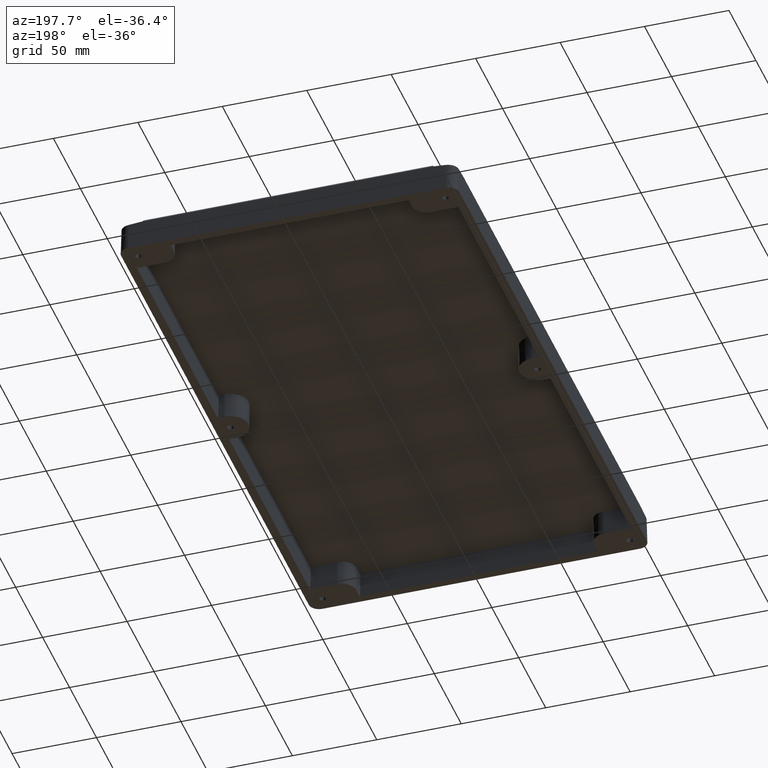
[diagram: clean part render]
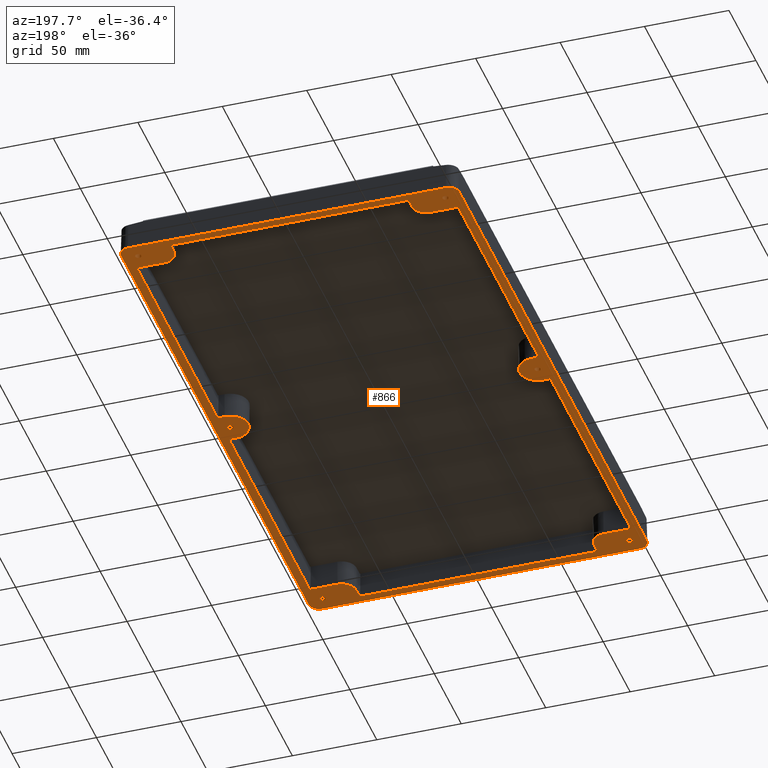
[diagram: same view with one face highlighted and labeled with its STEP entity id]
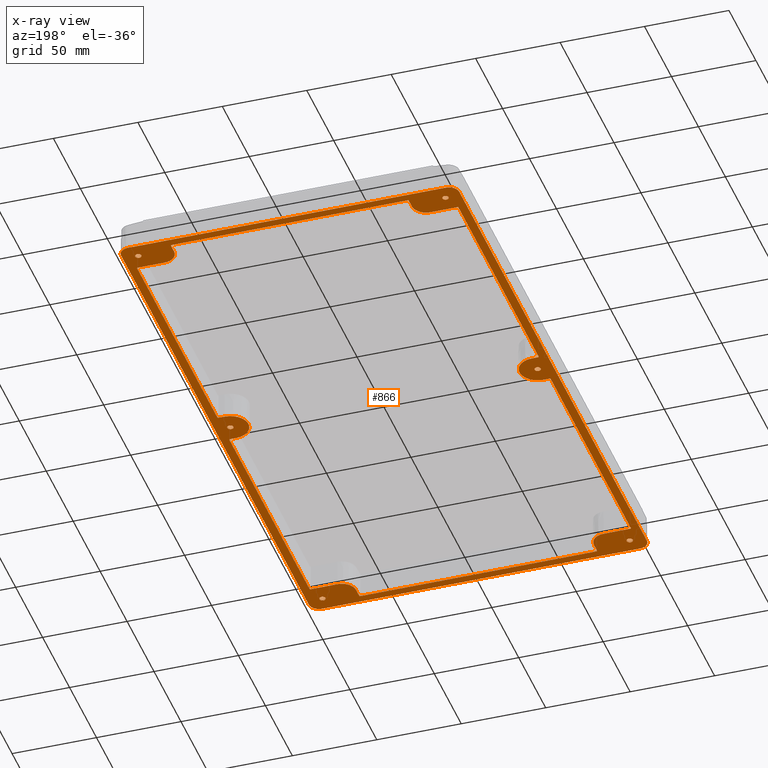
[diagram: x-ray of the same camera — body ghosted, the highlighted face saturated]
A machine part, auxiliary view. The second image highlights one B-rep face of the part: STEP entity #866.
The next image is the same camera in x-ray: the body ghosted, the highlighted face saturated — about 0% of this face is hidden behind the body in this view.
In plain terms, the highlighted planar face has unit normal (0, 0, -1).
Its self-contained STEP definition (entity closure, byte-faithful):
#9 = VERTEX_POINT ( 'NONE', #1637 ) ;
#17 = VERTEX_POINT ( 'NONE', #6438 ) ;
#20 = CARTESIAN_POINT ( 'NONE',  ( 0.0000000000000000000, -160.3950898701435500, -0.0000000000000000000 ) ) ;
#38 = EDGE_CURVE ( 'NONE', #893, #1880, #4820, .T. ) ;
#50 = CARTESIAN_POINT ( 'NONE',  ( -90.94999999999998900, 0.0000000000000000000, 0.0000000000000000000 ) ) ;
#67 = ORIENTED_EDGE ( 'NONE', *, *, #4058, .T. ) ;
#73 = CARTESIAN_POINT ( 'NONE',  ( -70.39508987014356500, 174.6051660225653600, 0.0000000000000000000 ) ) ;
#74 = VERTEX_POINT ( 'NONE', #2225 ) ;
#97 = VECTOR ( 'NONE', #1360, 1000.000000000000000 ) ;
#101 = CARTESIAN_POINT ( 'NONE',  ( -92.73141911687078200, -170.9499999999999900, 0.0000000000000000000 ) ) ;
#110 = CIRCLE ( 'NONE', #5610, 10.70491012985643000 ) ;
#128 = CARTESIAN_POINT ( 'NONE',  ( -95.10508987014355900, -11.20483397743463200, 0.0000000000000000000 ) ) ;
#133 = AXIS2_PLACEMENT_3D ( 'NONE', #782, #4488, #1313 ) ;
#144 = EDGE_CURVE ( 'NONE', #4789, #2051, #2618, .T. ) ;
#167 = CIRCLE ( 'NONE', #5452, 8.404910129856432400 ) ;
#219 = CARTESIAN_POINT ( 'NONE',  ( -100.0611865514846000, 174.8877112743129800, -9.812817213613517900E-016 ) ) ;
#239 = DIRECTION ( 'NONE',  ( 0.0000000000000000000, 0.0000000000000000000, -1.000000000000000000 ) ) ;
#244 = CARTESIAN_POINT ( 'NONE',  ( -98.06864227310671800, 178.6186540754715700, -5.286507671876823600E-015 ) ) ;
#255 = CARTESIAN_POINT ( 'NONE',  ( 95.65226020966247200, 179.8997009411932000, -2.257494188082270300E-016 ) ) ;
#256 = DIRECTION ( 'NONE',  ( 1.000000000000000000, -0.0000000000000000000, -0.0000000000000000000 ) ) ;
#257 = CARTESIAN_POINT ( 'NONE',  ( -95.10508987014355900, -159.8951660225653800, 0.0000000000000000000 ) ) ;
#261 = EDGE_CURVE ( 'NONE', #3702, #17, #6180, .T. ) ;
#276 = CARTESIAN_POINT ( 'NONE',  ( 99.79125463768900800, 176.0419557168522100, 2.521282835941872800E-016 ) ) ;
#277 = DIRECTION ( 'NONE',  ( 1.000000000000000000, 0.0000000000000000000, 0.0000000000000000000 ) ) ;
#279 = VERTEX_POINT ( 'NONE', #2429 ) ;
#292 = EDGE_CURVE ( 'NONE', #1758, #337, #1740, .T. ) ;
#298 = CARTESIAN_POINT ( 'NONE',  ( 94.60516602256534200, -10.70491012985643700, 0.0000000000000000000 ) ) ;
#300 = AXIS2_PLACEMENT_3D ( 'NONE', #1956, #5686, #2490 ) ;
#302 = CARTESIAN_POINT ( 'NONE',  ( -90.94999999999998900, 0.0000000000000000000, 0.0000000000000000000 ) ) ;
#306 = CARTESIAN_POINT ( 'NONE',  ( 0.0000000000000000000, 175.1050898701435300, 0.0000000000000000000 ) ) ;
#318 = VERTEX_POINT ( 'NONE', #882 ) ;
#335 = EDGE_LOOP ( 'NONE', ( #1837, #5002 ) ) ;
#337 = VERTEX_POINT ( 'NONE', #2478 ) ;
#345 = VERTEX_POINT ( 'NONE', #6217 ) ;
#347 = CIRCLE ( 'NONE', #4521, 1.781419116870783400 ) ;
#350 = CIRCLE ( 'NONE', #5202, 1.781419116870783400 ) ;
#372 = AXIS2_PLACEMENT_3D ( 'NONE', #987, #4693, #1517 ) ;
#389 = CARTESIAN_POINT ( 'NONE',  ( -80.24508987014355900, 0.0000000000000000000, 0.0000000000000000000 ) ) ;
#391 = CARTESIAN_POINT ( 'NONE',  ( 90.94999999999998900, 0.0000000000000000000, 0.0000000000000000000 ) ) ;
#404 = DIRECTION ( 'NONE',  ( -0.0000000000000000000, 1.000000000000000000, -0.0000000000000000000 ) ) ;
#416 = EDGE_CURVE ( 'NONE', #3673, #4888, #6406, .T. ) ;
#429 = CARTESIAN_POINT ( 'NONE',  ( -98.06539613243160100, -178.6215026840463100, -3.073858999079318100E-015 ) ) ;
#432 = VERTEX_POINT ( 'NONE', #5196 ) ;
#446 = CIRCLE ( 'NONE', #5939, 1.781419116870783400 ) ;
#449 = CARTESIAN_POINT ( 'NONE',  ( 100.0999999999999800, -174.4982977664216400, -4.977233360702049100E-013 ) ) ;
#461 = CARTESIAN_POINT ( 'NONE',  ( 95.10508987014358700, 160.1880331027236100, 0.0000000000000000000 ) ) ;
#465 = CARTESIAN_POINT ( 'NONE',  ( 99.30929745605615700, -177.1049914245107900, 3.443078577332647700E-015 ) ) ;
#473 = VERTEX_POINT ( 'NONE', #5256 ) ;
#480 = VERTEX_POINT ( 'NONE', #5774 ) ;
#485 = CARTESIAN_POINT ( 'NONE',  ( 94.10227574382449200, -180.0999999999999900, 0.0000000000000000000 ) ) ;
#508 = DIRECTION ( 'NONE',  ( 1.000000000000000000, 0.0000000000000000000, 0.0000000000000000000 ) ) ;
#531 = LINE ( 'NONE', #5078, #1947 ) ;
#536 = CARTESIAN_POINT ( 'NONE',  ( 95.10508987014353000, -10.91196689727638100, 0.0000000000000000000 ) ) ;
#542 = VERTEX_POINT ( 'NONE', #2131 ) ;
#547 = VERTEX_POINT ( 'NONE', #1608 ) ;
#566 = EDGE_CURVE ( 'NONE', #3972, #5915, #4140, .T. ) ;
#568 = CARTESIAN_POINT ( 'NONE',  ( 95.10508987014355900, 11.20483397743463200, 0.0000000000000000000 ) ) ;
#570 = DIRECTION ( 'NONE',  ( 1.000000000000000000, 0.0000000000000000000, 0.0000000000000000000 ) ) ;
#574 = ORIENTED_EDGE ( 'NONE', *, *, #3887, .F. ) ;
#582 = CARTESIAN_POINT ( 'NONE',  ( -92.73141911687078200, 170.9499999999999900, 0.0000000000000000000 ) ) ;
#592 = CARTESIAN_POINT ( 'NONE',  ( 70.18803310272360800, 175.1050898701435600, 0.0000000000000000000 ) ) ;
#606 = CARTESIAN_POINT ( 'NONE',  ( 95.10508987014355900, -11.20483397743463900, 0.0000000000000000000 ) ) ;
#618 = VECTOR ( 'NONE', #2472, 1000.000000000000000 ) ;
#625 = ORIENTED_EDGE ( 'NONE', *, *, #3495, .T. ) ;
#636 = CARTESIAN_POINT ( 'NONE',  ( -95.10508987014355900, 0.0000000000000000000, 0.0000000000000000000 ) ) ;
#653 = EDGE_CURVE ( 'NONE', #5387, #3051, #1093, .T. ) ;
#659 = EDGE_CURVE ( 'NONE', #547, #318, #2236, .T. ) ;
#668 = CARTESIAN_POINT ( 'NONE',  ( 70.39508987014356500, -174.6051660225653800, 0.0000000000000000000 ) ) ;
#680 = ORIENTED_EDGE ( 'NONE', *, *, #776, .T. ) ;
#696 = CIRCLE ( 'NONE', #3816, 1.781419116870783400 ) ;
#710 = EDGE_CURVE ( 'NONE', #5719, #893, #6773, .T. ) ;
#759 = ORIENTED_EDGE ( 'NONE', *, *, #4476, .T. ) ;
#766 = CARTESIAN_POINT ( 'NONE',  ( -94.60516602256534200, -160.3950898701435500, 0.0000000000000000000 ) ) ;
#770 = CARTESIAN_POINT ( 'NONE',  ( -97.27573733343122300, 179.1958090675271900, 1.839765359087504800E-015 ) ) ;
#772 = VERTEX_POINT ( 'NONE', #5490 ) ;
#776 = EDGE_CURVE ( 'NONE', #5031, #801, #347, .T. ) ;
#778 = CARTESIAN_POINT ( 'NONE',  ( 96.21606710556638100, 179.7187829789477000, -2.503219281011954900E-015 ) ) ;
#782 = CARTESIAN_POINT ( 'NONE',  ( 90.94999999999998900, 170.9499999999999900, 0.0000000000000000000 ) ) ;
#801 = VERTEX_POINT ( 'NONE', #2712 ) ;
#802 = CARTESIAN_POINT ( 'NONE',  ( 100.0611818184928400, 174.8900095030461200, -9.994214926206402100E-016 ) ) ;
#804 = VERTEX_POINT ( 'NONE', #101 ) ;
#809 = ORIENTED_EDGE ( 'NONE', *, *, #4814, .T. ) ;
#828 = CARTESIAN_POINT ( 'NONE',  ( -2.724515327580393100E-013, 160.3950898701433800, 0.0000000000000000000 ) ) ;
#832 = DIRECTION ( 'NONE',  ( 1.000000000000000000, 0.0000000000000000000, 0.0000000000000000000 ) ) ;
#836 = CARTESIAN_POINT ( 'NONE',  ( -94.60516602256534200, 10.70491012985643700, 0.0000000000000000000 ) ) ;
#840 = VECTOR ( 'NONE', #4243, 1000.000000000000000 ) ;
#862 = DIRECTION ( 'NONE',  ( -1.000000000000000000, 0.0000000000000000000, -0.0000000000000000000 ) ) ;
#863 = DIRECTION ( 'NONE',  ( 1.000000000000000000, 4.140151493978061200E-016, -0.0000000000000000000 ) ) ;
#866 = ADVANCED_FACE ( 'NONE', ( #4803, #2148, #3552, #5486, #4979, #915, #3380, #1995 ), #3822, .T. ) ;
#878 = CARTESIAN_POINT ( 'NONE',  ( 95.10508987014355900, 11.20483397743463200, 0.0000000000000000000 ) ) ;
#882 = CARTESIAN_POINT ( 'NONE',  ( -78.79999999999999700, -160.3950898701435500, 0.0000000000000000000 ) ) ;
#883 = CARTESIAN_POINT ( 'NONE',  ( -4.431994966702583900E-015, 10.70491012985639600, -0.0000000000000000000 ) ) ;
#893 = VERTEX_POINT ( 'NONE', #668 ) ;
#897 = ORIENTED_EDGE ( 'NONE', *, *, #3218, .T. ) ;
#901 = ORIENTED_EDGE ( 'NONE', *, *, #3971, .T. ) ;
#910 = DIRECTION ( 'NONE',  ( -1.000000000000000000, 0.0000000000000000000, 0.0000000000000000000 ) ) ;
#915 = FACE_BOUND ( 'NONE', #4537, .T. ) ;
#932 =( BOUNDED_CURVE ( )  B_SPLINE_CURVE ( 3, ( #1578, #4783, #3714, #568 ),
 .UNSPECIFIED., .F., .T. ) 
 B_SPLINE_CURVE_WITH_KNOTS ( ( 4, 4 ),
 ( 2.356346783439935900, 3.926838523739660600 ),
 .UNSPECIFIED. ) 
 CURVE ( )  GEOMETRIC_REPRESENTATION_ITEM ( )  RATIONAL_B_SPLINE_CURVE ( ( 1.000000000000000000, 0.8048096403827879100, 0.8048096403827879100, 1.000000000000000000 ) ) 
 REPRESENTATION_ITEM ( '' )  );
#949 = CARTESIAN_POINT ( 'NONE',  ( -90.94999999999998900, 170.9499999999999900, 0.0000000000000000000 ) ) ;
#951 = CARTESIAN_POINT ( 'NONE',  ( -98.86692771561502000, -177.7669763413323900, -7.412452626216713700E-016 ) ) ;
#987 = CARTESIAN_POINT ( 'NONE',  ( 90.94999999999998900, 0.0000000000000000000, 0.0000000000000000000 ) ) ;
#988 = CARTESIAN_POINT ( 'NONE',  ( 98.62150268404619200, -178.0653961324313700, -1.976487102548542200E-015 ) ) ;
#997 = EDGE_CURVE ( 'NONE', #1328, #432, #5062, .T. ) ;
#1018 = CARTESIAN_POINT ( 'NONE',  ( 69.89516602256536300, -175.1050898701435300, -0.0000000000000000000 ) ) ;
#1031 = DIRECTION ( 'NONE',  ( -0.0000000000000000000, -0.0000000000000000000, -1.000000000000000000 ) ) ;
#1048 = CARTESIAN_POINT ( 'NONE',  ( -95.10508987014357300, 159.8951660225653500, 0.0000000000000000000 ) ) ;
#1060 = ORIENTED_EDGE ( 'NONE', *, *, #2968, .T. ) ;
#1065 = CARTESIAN_POINT ( 'NONE',  ( 94.60516602256534200, -10.70491012985643700, 0.0000000000000000000 ) ) ;
#1067 = CARTESIAN_POINT ( 'NONE',  ( 70.39508987014355100, -174.8980331027235600, 0.0000000000000000000 ) ) ;
#1086 = EDGE_CURVE ( 'NONE', #4724, #542, #3498, .T. ) ;
#1091 = DIRECTION ( 'NONE',  ( -1.000000000000000000, 0.0000000000000000000, -0.0000000000000000000 ) ) ;
#1093 =( BOUNDED_CURVE ( )  B_SPLINE_CURVE ( 3, ( #5340, #2023, #4215, #1048 ),
 .UNSPECIFIED., .F., .F. ) 
 B_SPLINE_CURVE_WITH_KNOTS ( ( 4, 4 ),
 ( 2.356346783439935900, 3.926838523739705900 ),
 .UNSPECIFIED. ) 
 CURVE ( )  GEOMETRIC_REPRESENTATION_ITEM ( )  RATIONAL_B_SPLINE_CURVE ( ( 1.000000000000000000, 0.8048096403827772500, 0.8048096403827772500, 1.000000000000000000 ) ) 
 REPRESENTATION_ITEM ( '' )  );
#1119 = CIRCLE ( 'NONE', #133, 1.781419116870783400 ) ;
#1123 = EDGE_CURVE ( 'NONE', #3051, #9, #6201, .T. ) ;
#1134 = CARTESIAN_POINT ( 'NONE',  ( 70.39508987014356500, 0.0000000000000000000, 0.0000000000000000000 ) ) ;
#1142 = EDGE_CURVE ( 'NONE', #5729, #5143, #3154, .T. ) ;
#1205 = CARTESIAN_POINT ( 'NONE',  ( -94.60516602256537100, 160.3950898701435500, 0.0000000000000000000 ) ) ;
#1232 = ORIENTED_EDGE ( 'NONE', *, *, #6360, .T. ) ;
#1233 = VERTEX_POINT ( 'NONE', #6592 ) ;
#1236 = LINE ( 'NONE', #4264, #1398 ) ;
#1244 = CARTESIAN_POINT ( 'NONE',  ( 90.94999999999998900, 10.70491012985643500, -4.336808689942017700E-016 ) ) ;
#1256 = ORIENTED_EDGE ( 'NONE', *, *, #2107, .F. ) ;
#1260 = CIRCLE ( 'NONE', #372, 1.781419116870783400 ) ;
#1261 = ORIENTED_EDGE ( 'NONE', *, *, #1123, .T. ) ;
#1263 = DIRECTION ( 'NONE',  ( 0.0000000000000000000, 0.0000000000000000000, 1.000000000000000000 ) ) ;
#1264 = ORIENTED_EDGE ( 'NONE', *, *, #2079, .T. ) ;
#1266 = VECTOR ( 'NONE', #256, 1000.000000000000000 ) ;
#1281 = VECTOR ( 'NONE', #3548, 1000.000000000000000 ) ;
#1292 = CARTESIAN_POINT ( 'NONE',  ( -96.75949026482086900, 179.4830894971216500, -5.546012845584899200E-015 ) ) ;
#1295 = VERTEX_POINT ( 'NONE', #257 ) ;
#1301 = CARTESIAN_POINT ( 'NONE',  ( 97.10499142451080000, 179.3092974560561900, 1.030578542457225100E-015 ) ) ;
#1303 = DIRECTION ( 'NONE',  ( 0.0000000000000000000, 0.0000000000000000000, -1.000000000000000000 ) ) ;
#1313 = DIRECTION ( 'NONE',  ( 1.000000000000000000, 0.0000000000000000000, 0.0000000000000000000 ) ) ;
#1324 = CARTESIAN_POINT ( 'NONE',  ( -92.73141911687078200, -2.181609219415715600E-016, 0.0000000000000000000 ) ) ;
#1328 = VERTEX_POINT ( 'NONE', #298 ) ;
#1330 = CARTESIAN_POINT ( 'NONE',  ( 100.0999999999999900, 174.1022757438244600, 0.0000000000000000000 ) ) ;
#1355 = AXIS2_PLACEMENT_3D ( 'NONE', #6857, #3654, #508 ) ;
#1360 = DIRECTION ( 'NONE',  ( -1.000000000000000000, -1.698627638655381000E-015, -0.0000000000000000000 ) ) ;
#1361 = CARTESIAN_POINT ( 'NONE',  ( -69.89516602256534800, -175.1050898701435300, 0.0000000000000000000 ) ) ;
#1382 = CARTESIAN_POINT ( 'NONE',  ( 0.0000000000000000000, -10.70491012985643700, -0.0000000000000000000 ) ) ;
#1398 = VECTOR ( 'NONE', #1091, 1000.000000000000000 ) ;
#1400 = DIRECTION ( 'NONE',  ( -0.0000000000000000000, -0.0000000000000000000, -1.000000000000000000 ) ) ;
#1406 = VERTEX_POINT ( 'NONE', #1672 ) ;
#1413 = EDGE_CURVE ( 'NONE', #473, #1295, #3986, .T. ) ;
#1431 = CARTESIAN_POINT ( 'NONE',  ( 70.39508987014356500, 0.0000000000000000000, 0.0000000000000000000 ) ) ;
#1453 = LINE ( 'NONE', #3211, #2853 ) ;
#1455 = CARTESIAN_POINT ( 'NONE',  ( -78.79999999999999700, -168.7999999999999800, 0.0000000000000000000 ) ) ;
#1471 = DIRECTION ( 'NONE',  ( 1.000000000000000000, 0.0000000000000000000, 0.0000000000000000000 ) ) ;
#1472 = CARTESIAN_POINT ( 'NONE',  ( -100.0999999999999900, -180.0999999999999900, 0.0000000000000000000 ) ) ;
#1476 = CARTESIAN_POINT ( 'NONE',  ( -99.29795341314886100, -177.1054965856573100, -8.332946197956115000E-016 ) ) ;
#1493 = ORIENTED_EDGE ( 'NONE', *, *, #2629, .T. ) ;
#1513 = CARTESIAN_POINT ( 'NONE',  ( 95.10508987014355900, 159.8951660225653500, 0.0000000000000000000 ) ) ;
#1517 = DIRECTION ( 'NONE',  ( 1.000000000000000000, 0.0000000000000000000, 0.0000000000000000000 ) ) ;
#1519 = CARTESIAN_POINT ( 'NONE',  ( 97.76697634133238100, -178.8669277156149100, -1.179336768645849400E-016 ) ) ;
#1548 = VERTEX_POINT ( 'NONE', #5047 ) ;
#1578 = CARTESIAN_POINT ( 'NONE',  ( 94.60516602256535600, 10.70491012985643700, -0.0000000000000000000 ) ) ;
#1580 = ORIENTED_EDGE ( 'NONE', *, *, #6587, .T. ) ;
#1588 = VECTOR ( 'NONE', #3284, 1000.000000000000000 ) ;
#1608 = CARTESIAN_POINT ( 'NONE',  ( -94.60516602256534200, -160.3950898701435500, 0.0000000000000000000 ) ) ;
#1611 = EDGE_CURVE ( 'NONE', #1406, #345, #4183, .T. ) ;
#1623 = CARTESIAN_POINT ( 'NONE',  ( 0.0000000000000000000, 10.70491012985643700, 0.0000000000000000000 ) ) ;
#1624 = CARTESIAN_POINT ( 'NONE',  ( -69.89516602256539100, 175.1050898701435300, 0.0000000000000000000 ) ) ;
#1626 = ORIENTED_EDGE ( 'NONE', *, *, #1142, .F. ) ;
#1629 = CARTESIAN_POINT ( 'NONE',  ( -100.0999999999999900, -174.1022757438244900, 0.0000000000000000000 ) ) ;
#1634 =( BOUNDED_CURVE ( )  B_SPLINE_CURVE ( 3, ( #6483, #2746, #3271, #128 ),
 .UNSPECIFIED., .F., .F. ) 
 B_SPLINE_CURVE_WITH_KNOTS ( ( 4, 4 ),
 ( 2.356346783439935900, 3.926838523739660600 ),
 .UNSPECIFIED. ) 
 CURVE ( )  GEOMETRIC_REPRESENTATION_ITEM ( )  RATIONAL_B_SPLINE_CURVE ( ( 1.000000000000000000, 0.8048096403827879100, 0.8048096403827879100, 1.000000000000000000 ) ) 
 REPRESENTATION_ITEM ( '' )  );
#1637 = CARTESIAN_POINT ( 'NONE',  ( -95.10508987014355900, 11.20483397743463900, 0.0000000000000000000 ) ) ;
#1672 = CARTESIAN_POINT ( 'NONE',  ( 94.60516602256535600, -160.3950898701435500, -0.0000000000000000000 ) ) ;
#1683 = CARTESIAN_POINT ( 'NONE',  ( -89.16858088312919500, -170.9499999999999900, 0.0000000000000000000 ) ) ;
#1696 = EDGE_LOOP ( 'NONE', ( #1256, #4480 ) ) ;
#1709 = CARTESIAN_POINT ( 'NONE',  ( 69.89516602256536300, -175.1050898701435300, -0.0000000000000000000 ) ) ;
#1721 = CIRCLE ( 'NONE', #4371, 10.70491012985643000 ) ;
#1740 = LINE ( 'NONE', #2929, #3140 ) ;
#1748 = ORIENTED_EDGE ( 'NONE', *, *, #4562, .T. ) ;
#1758 = VERTEX_POINT ( 'NONE', #4914 ) ;
#1764 = AXIS2_PLACEMENT_3D ( 'NONE', #4198, #1031, #4746 ) ;
#1795 = CARTESIAN_POINT ( 'NONE',  ( -95.10508987014353000, -160.1880331027236400, 0.0000000000000000000 ) ) ;
#1797 = LINE ( 'NONE', #5032, #6379 ) ;
#1798 = CARTESIAN_POINT ( 'NONE',  ( -99.89970094119307500, 175.6522602096624700, -1.030653262841937800E-015 ) ) ;
#1821 = CARTESIAN_POINT ( 'NONE',  ( -96.04195571685217200, 179.7912546376888700, -1.122662163663018800E-015 ) ) ;
#1825 = VECTOR ( 'NONE', #4847, 1000.000000000000000 ) ;
#1832 = CARTESIAN_POINT ( 'NONE',  ( 98.06539613243151600, 178.6215026840462200, -2.429201936161350900E-015 ) ) ;
#1834 = CARTESIAN_POINT ( 'NONE',  ( 0.0000000000000000000, -175.1050898701435300, -0.0000000000000000000 ) ) ;
#1837 = ORIENTED_EDGE ( 'NONE', *, *, #3462, .F. ) ;
#1848 = EDGE_CURVE ( 'NONE', #5623, #1758, #110, .T. ) ;
#1850 = DIRECTION ( 'NONE',  ( 1.000000000000000000, 0.0000000000000000000, 0.0000000000000000000 ) ) ;
#1851 = CIRCLE ( 'NONE', #5398, 8.404910129856432400 ) ;
#1862 = VECTOR ( 'NONE', #404, 1000.000000000000000 ) ;
#1870 = CIRCLE ( 'NONE', #2955, 1.781419116870783400 ) ;
#1877 = ORIENTED_EDGE ( 'NONE', *, *, #4691, .T. ) ;
#1880 = VERTEX_POINT ( 'NONE', #2352 ) ;
#1947 = VECTOR ( 'NONE', #2424, 1000.000000000000000 ) ;
#1955 = EDGE_CURVE ( 'NONE', #772, #2574, #3632, .T. ) ;
#1956 = CARTESIAN_POINT ( 'NONE',  ( 90.94999999999998900, 0.0000000000000000000, 0.0000000000000000000 ) ) ;
#1970 = EDGE_LOOP ( 'NONE', ( #5899, #5219 ) ) ;
#1995 = FACE_BOUND ( 'NONE', #6859, .T. ) ;
#1996 = CARTESIAN_POINT ( 'NONE',  ( -95.46232065231328100, -179.9471065953007700, 2.571658721265192700E-017 ) ) ;
#1998 = EDGE_CURVE ( 'NONE', #2453, #1233, #4911, .T. ) ;
#2000 = DIRECTION ( 'NONE',  ( -1.000000000000000000, 0.0000000000000000000, 0.0000000000000000000 ) ) ;
#2016 = CARTESIAN_POINT ( 'NONE',  ( -99.56672601086465600, -176.5828168333153200, 7.438257726228613800E-017 ) ) ;
#2023 = CARTESIAN_POINT ( 'NONE',  ( -94.89803310272363000, 160.3950898701435500, 0.0000000000000000000 ) ) ;
#2032 = LINE ( 'NONE', #1431, #1862 ) ;
#2051 = VERTEX_POINT ( 'NONE', #6240 ) ;
#2053 = CARTESIAN_POINT ( 'NONE',  ( 97.10549658565727800, -179.2979534131488600, -1.934113723460282700E-015 ) ) ;
#2066 = VECTOR ( 'NONE', #5102, 1000.000000000000000 ) ;
#2079 = EDGE_CURVE ( 'NONE', #3345, #5627, #2994, .T. ) ;
#2107 = EDGE_CURVE ( 'NONE', #1548, #5294, #1260, .T. ) ;
#2118 = EDGE_LOOP ( 'NONE', ( #3798, #5580, #1626, #625, #2772, #3845, #5033, #6129 ) ) ;
#2131 = CARTESIAN_POINT ( 'NONE',  ( -90.94999999999998900, 10.70491012985643700, 0.0000000000000000000 ) ) ;
#2136 = ORIENTED_EDGE ( 'NONE', *, *, #5746, .T. ) ;
#2145 = ORIENTED_EDGE ( 'NONE', *, *, #3130, .F. ) ;
#2148 = FACE_BOUND ( 'NONE', #335, .T. ) ;
#2150 = EDGE_CURVE ( 'NONE', #5795, #4869, #2655, .T. ) ;
#2159 = CARTESIAN_POINT ( 'NONE',  ( -69.89516602256534800, -175.1050898701435300, 0.0000000000000000000 ) ) ;
#2160 = ORIENTED_EDGE ( 'NONE', *, *, #653, .T. ) ;
#2225 = CARTESIAN_POINT ( 'NONE',  ( -70.39508987014356500, 174.6051660225653600, 0.0000000000000000000 ) ) ;
#2236 = LINE ( 'NONE', #20, #840 ) ;
#2243 = ORIENTED_EDGE ( 'NONE', *, *, #1848, .T. ) ;
#2256 =( BOUNDED_CURVE ( )  B_SPLINE_CURVE ( 3, ( #6398, #4804, #5343, #2159 ),
 .UNSPECIFIED., .F., .T. ) 
 B_SPLINE_CURVE_WITH_KNOTS ( ( 4, 4 ),
 ( 2.356346783439935900, 3.926838523739677900 ),
 .UNSPECIFIED. ) 
 CURVE ( )  GEOMETRIC_REPRESENTATION_ITEM ( )  RATIONAL_B_SPLINE_CURVE ( ( 1.000000000000000000, 0.8048096403827838000, 0.8048096403827838000, 1.000000000000000000 ) ) 
 REPRESENTATION_ITEM ( '' )  );
#2294 = EDGE_LOOP ( 'NONE', ( #4076, #680 ) ) ;
#2297 = ORIENTED_EDGE ( 'NONE', *, *, #6349, .T. ) ;
#2337 = CARTESIAN_POINT ( 'NONE',  ( -99.71878297894774300, 176.2160671055662800, -9.392039258388465200E-016 ) ) ;
#2352 = CARTESIAN_POINT ( 'NONE',  ( 70.39508987014356500, -168.7999999999999800, 0.0000000000000000000 ) ) ;
#2356 = CARTESIAN_POINT ( 'NONE',  ( -94.89000950304617300, 180.0611818184927700, 2.006863366285422600E-015 ) ) ;
#2362 = CARTESIAN_POINT ( 'NONE',  ( 98.86692771561502000, 177.7669763413323900, -1.610777949715467800E-015 ) ) ;
#2366 = AXIS2_PLACEMENT_3D ( 'NONE', #4482, #1303, #5021 ) ;
#2424 = DIRECTION ( 'NONE',  ( 0.0000000000000000000, 1.000000000000000000, 0.0000000000000000000 ) ) ;
#2429 = CARTESIAN_POINT ( 'NONE',  ( 70.39508987014356500, 174.6051660225653800, 0.0000000000000000000 ) ) ;
#2436 = DIRECTION ( 'NONE',  ( 0.0000000000000000000, 0.0000000000000000000, -1.000000000000000000 ) ) ;
#2453 = VERTEX_POINT ( 'NONE', #4458 ) ;
#2467 = CARTESIAN_POINT ( 'NONE',  ( 94.60516602256535600, -160.3950898701435500, -0.0000000000000000000 ) ) ;
#2472 = DIRECTION ( 'NONE',  ( -0.0000000000000000000, 1.000000000000000000, -0.0000000000000000000 ) ) ;
#2475 = CARTESIAN_POINT ( 'NONE',  ( -78.79999999999999700, 168.7999999999999800, 0.0000000000000000000 ) ) ;
#2478 = CARTESIAN_POINT ( 'NONE',  ( -94.60516602256535600, -10.70491012985643700, -0.0000000000000000000 ) ) ;
#2485 = EDGE_CURVE ( 'NONE', #804, #6623, #350, .T. ) ;
#2490 = DIRECTION ( 'NONE',  ( 1.000000000000000000, 0.0000000000000000000, 0.0000000000000000000 ) ) ;
#2499 = CARTESIAN_POINT ( 'NONE',  ( -70.39508987014356500, 0.0000000000000000000, 0.0000000000000000000 ) ) ;
#2521 = CARTESIAN_POINT ( 'NONE',  ( -96.02887233921612200, -179.7857018176585800, -1.404448045272068400E-015 ) ) ;
#2534 = DIRECTION ( 'NONE',  ( -0.0000000000000000000, -1.000000000000000000, -0.0000000000000000000 ) ) ;
#2539 = DIRECTION ( 'NONE',  ( 1.000000000000000000, 0.0000000000000000000, 0.0000000000000000000 ) ) ;
#2540 = CARTESIAN_POINT ( 'NONE',  ( -99.90643504357390700, -175.6648654270246400, 3.327712546767379200E-017 ) ) ;
#2542 = ORIENTED_EDGE ( 'NONE', *, *, #997, .T. ) ;
#2552 = CIRCLE ( 'NONE', #300, 1.781419116870783400 ) ;
#2563 = CARTESIAN_POINT ( 'NONE',  ( 99.94710659530069600, -175.4623206523132500, 1.482825712279375200E-015 ) ) ;
#2564 = CARTESIAN_POINT ( 'NONE',  ( 78.79999999999999700, -168.7999999999999800, 0.0000000000000000000 ) ) ;
#2573 = CARTESIAN_POINT ( 'NONE',  ( 94.60516602256534200, 160.3950898701435500, 0.0000000000000000000 ) ) ;
#2574 = VERTEX_POINT ( 'NONE', #6433 ) ;
#2581 = CARTESIAN_POINT ( 'NONE',  ( 96.58281683331533400, -179.5667260108645300, -4.948878109208404500E-015 ) ) ;
#2593 = AXIS2_PLACEMENT_3D ( 'NONE', #5628, #2436, #6179 ) ;
#2618 = B_SPLINE_CURVE_WITH_KNOTS ( 'NONE', 3,
 ( #4447, #3897, #219, #4987, #1798, #5530, #2337, #6069, #2861, #6599, #3387, #244, #3913, #770, #4472, #1292, #5011, #1821, #5548, #2356, #6096, #2884 ),
 .UNSPECIFIED., .F., .F.,
 ( 4, 2, 2, 2, 2, 2, 2, 2, 2, 2, 4 ),
 ( 2.775557561562891400E-017, 0.001171210844434151300, 0.001756816266651208700, 0.002342421688868266200, 0.003513632533302305100, 0.004684843377736344100, 0.005856054222170383100, 0.006441659644387396500, 0.007027265066604410800, 0.008198475911038437600, 0.009369686755472466200 ),
 .UNSPECIFIED. ) ;
#2629 = EDGE_CURVE ( 'NONE', #337, #473, #1634, .T. ) ;
#2648 = EDGE_LOOP ( 'NONE', ( #574, #2145 ) ) ;
#2651 = CARTESIAN_POINT ( 'NONE',  ( 95.10508987014355900, -160.1880331027236100, 0.0000000000000000000 ) ) ;
#2655 = CIRCLE ( 'NONE', #1764, 1.781419116870783400 ) ;
#2671 = LINE ( 'NONE', #2499, #1281 ) ;
#2674 = CARTESIAN_POINT ( 'NONE',  ( 89.16858088312919500, -2.181609219415715100E-016, 0.0000000000000000000 ) ) ;
#2700 = ORIENTED_EDGE ( 'NONE', *, *, #4747, .T. ) ;
#2712 = CARTESIAN_POINT ( 'NONE',  ( 92.73141911687078200, 170.9499999999999900, 0.0000000000000000000 ) ) ;
#2734 = CARTESIAN_POINT ( 'NONE',  ( -95.10508987014355900, -8.813089320652889600E-015, -0.0000000000000000000 ) ) ;
#2746 = CARTESIAN_POINT ( 'NONE',  ( -94.89803310272361600, -10.70491012985644000, 0.0000000000000000000 ) ) ;
#2772 = ORIENTED_EDGE ( 'NONE', *, *, #416, .F. ) ;
#2787 = CARTESIAN_POINT ( 'NONE',  ( 0.0000000000000000000, 0.0000000000000000000, 0.0000000000000000000 ) ) ;
#2790 = VERTEX_POINT ( 'NONE', #1324 ) ;
#2799 = ORIENTED_EDGE ( 'NONE', *, *, #1998, .T. ) ;
#2831 = CIRCLE ( 'NONE', #2366, 10.70491012985643000 ) ;
#2853 = VECTOR ( 'NONE', #5888, 1000.000000000000000 ) ;
#2855 = EDGE_CURVE ( 'NONE', #6623, #804, #6206, .T. ) ;
#2861 = CARTESIAN_POINT ( 'NONE',  ( -99.30929745605617100, 177.1049914245107000, -2.358272998173016700E-017 ) ) ;
#2872 = EDGE_CURVE ( 'NONE', #4288, #4789, #531, .T. ) ;
#2874 = CARTESIAN_POINT ( 'NONE',  ( 94.49829776642171500, 180.0999999999999900, 1.910906329005701600E-015 ) ) ;
#2884 = CARTESIAN_POINT ( 'NONE',  ( -94.10227574382452100, 180.0999999999999900, 0.0000000000000000000 ) ) ;
#2892 = CARTESIAN_POINT ( 'NONE',  ( 99.29795341314880400, 177.1054965856572800, -1.110682589839984600E-015 ) ) ;
#2921 = CIRCLE ( 'NONE', #1355, 1.781419116870783400 ) ;
#2924 = DIRECTION ( 'NONE',  ( 0.0000000000000000000, 0.0000000000000000000, 1.000000000000000000 ) ) ;
#2929 = CARTESIAN_POINT ( 'NONE',  ( 0.0000000000000000000, -10.70491012985643700, -0.0000000000000000000 ) ) ;
#2935 = ORIENTED_EDGE ( 'NONE', *, *, #6195, .T. ) ;
#2955 = AXIS2_PLACEMENT_3D ( 'NONE', #302, #3988, #832 ) ;
#2968 = EDGE_CURVE ( 'NONE', #74, #2453, #2671, .T. ) ;
#2994 = LINE ( 'NONE', #3040, #4230 ) ;
#3000 = VERTEX_POINT ( 'NONE', #6796 ) ;
#3008 = DIRECTION ( 'NONE',  ( -1.000000000000000000, 0.0000000000000000000, 0.0000000000000000000 ) ) ;
#3040 = CARTESIAN_POINT ( 'NONE',  ( -70.39508987014356500, 0.0000000000000000000, 0.0000000000000000000 ) ) ;
#3049 = CARTESIAN_POINT ( 'NONE',  ( -96.76061724776083400, -179.4932926320602200, -3.770084218230412200E-015 ) ) ;
#3051 = VERTEX_POINT ( 'NONE', #4714 ) ;
#3065 = CARTESIAN_POINT ( 'NONE',  ( -100.0999999999999900, -174.4982986667857600, -1.384898868760783800E-015 ) ) ;
#3079 = EDGE_CURVE ( 'NONE', #1880, #5212, #1851, .T. ) ;
#3083 = CARTESIAN_POINT ( 'NONE',  ( 99.78570181765849200, -176.0288723392160900, -5.466943394205041000E-015 ) ) ;
#3085 = DIRECTION ( 'NONE',  ( -1.000000000000000000, 0.0000000000000000000, 0.0000000000000000000 ) ) ;
#3102 = CARTESIAN_POINT ( 'NONE',  ( 95.66486542702456600, -179.9064350435738800, 4.929903486744628300E-015 ) ) ;
#3130 = EDGE_CURVE ( 'NONE', #6860, #480, #2921, .T. ) ;
#3140 = VECTOR ( 'NONE', #862, 1000.000000000000000 ) ;
#3150 = ORIENTED_EDGE ( 'NONE', *, *, #3787, .T. ) ;
#3154 = LINE ( 'NONE', #4344, #1588 ) ;
#3201 = EDGE_CURVE ( 'NONE', #2790, #3277, #696, .T. ) ;
#3211 = CARTESIAN_POINT ( 'NONE',  ( 0.0000000000000000000, -160.3950898701435500, -0.0000000000000000000 ) ) ;
#3216 = CARTESIAN_POINT ( 'NONE',  ( -70.39508987014360700, 174.8980331027236400, 0.0000000000000000000 ) ) ;
#3218 = EDGE_CURVE ( 'NONE', #279, #772, #6100, .T. ) ;
#3219 = ORIENTED_EDGE ( 'NONE', *, *, #1413, .T. ) ;
#3271 = CARTESIAN_POINT ( 'NONE',  ( -95.10508987014353000, -10.91196689727638300, 0.0000000000000000000 ) ) ;
#3277 = VERTEX_POINT ( 'NONE', #5960 ) ;
#3284 = DIRECTION ( 'NONE',  ( 0.0000000000000000000, 1.000000000000000000, 0.0000000000000000000 ) ) ;
#3287 = VECTOR ( 'NONE', #5691, 1000.000000000000000 ) ;
#3309 = VECTOR ( 'NONE', #863, 1000.000000000000000 ) ;
#3317 = DIRECTION ( 'NONE',  ( -1.000000000000000000, 0.0000000000000000000, -0.0000000000000000000 ) ) ;
#3345 = VERTEX_POINT ( 'NONE', #6541 ) ;
#3360 = ORIENTED_EDGE ( 'NONE', *, *, #3592, .T. ) ;
#3380 = FACE_BOUND ( 'NONE', #1696, .T. ) ;
#3382 = CARTESIAN_POINT ( 'NONE',  ( -90.94999999999998900, 0.0000000000000000000, 0.0000000000000000000 ) ) ;
#3387 = CARTESIAN_POINT ( 'NONE',  ( -98.62150268404614900, 178.0653961324314000, -5.286507671876820400E-015 ) ) ;
#3400 = CARTESIAN_POINT ( 'NONE',  ( 95.46232065231328100, 179.9471065953007400, 2.620344817954913700E-016 ) ) ;
#3419 = CARTESIAN_POINT ( 'NONE',  ( 99.56672601086458500, 176.5828168333153200, 2.521282835941874300E-016 ) ) ;
#3420 = DIRECTION ( 'NONE',  ( 0.0000000000000000000, 0.0000000000000000000, 1.000000000000000000 ) ) ;
#3451 = CARTESIAN_POINT ( 'NONE',  ( -95.10508987014353000, 10.91196689727638100, 0.0000000000000000000 ) ) ;
#3456 = LINE ( 'NONE', #6737, #3287 ) ;
#3462 = EDGE_CURVE ( 'NONE', #4869, #5795, #4833, .T. ) ;
#3495 = EDGE_CURVE ( 'NONE', #5729, #4888, #6047, .T. ) ;
#3498 = LINE ( 'NONE', #1623, #5094 ) ;
#3511 =( BOUNDED_CURVE ( )  B_SPLINE_CURVE ( 3, ( #1624, #5897, #3216, #73 ),
 .UNSPECIFIED., .F., .F. ) 
 B_SPLINE_CURVE_WITH_KNOTS ( ( 4, 4 ),
 ( 2.356346783439935900, 3.926838523739705900 ),
 .UNSPECIFIED. ) 
 CURVE ( )  GEOMETRIC_REPRESENTATION_ITEM ( )  RATIONAL_B_SPLINE_CURVE ( ( 1.000000000000000000, 0.8048096403827772500, 0.8048096403827772500, 1.000000000000000000 ) ) 
 REPRESENTATION_ITEM ( '' )  );
#3548 = DIRECTION ( 'NONE',  ( -0.0000000000000000000, -1.000000000000000000, -0.0000000000000000000 ) ) ;
#3552 = FACE_OUTER_BOUND ( 'NONE', #2118, .T. ) ;
#3574 = CARTESIAN_POINT ( 'NONE',  ( -97.75675560653581900, -178.8745738067465800, -1.876175728493452700E-016 ) ) ;
#3592 = EDGE_CURVE ( 'NONE', #17, #5999, #932, .T. ) ;
#3599 = CARTESIAN_POINT ( 'NONE',  ( -94.60516602256534200, 10.70491012985643700, 0.0000000000000000000 ) ) ;
#3608 = CARTESIAN_POINT ( 'NONE',  ( 99.49329263206026000, -176.7606172477607600, -2.863426603167214900E-015 ) ) ;
#3626 = CARTESIAN_POINT ( 'NONE',  ( 94.49829866678571500, -180.0999999999998800, -4.336808689942028000E-015 ) ) ;
#3632 = LINE ( 'NONE', #306, #6501 ) ;
#3654 = DIRECTION ( 'NONE',  ( -0.0000000000000000000, -0.0000000000000000000, -1.000000000000000000 ) ) ;
#3673 = VERTEX_POINT ( 'NONE', #6497 ) ;
#3685 = CARTESIAN_POINT ( 'NONE',  ( 95.10508987014355900, -11.20483397743463900, 0.0000000000000000000 ) ) ;
#3702 = VERTEX_POINT ( 'NONE', #1244 ) ;
#3706 = B_SPLINE_CURVE_WITH_KNOTS ( 'NONE', 3,
 ( #6769, #4636, #5184, #1996, #5722, #2521, #6266, #3049, #6783, #3574, #429, #4114, #951, #4662, #1476, #5199, #2016, #5743, #2540, #6286, #3065, #6803 ),
 .UNSPECIFIED., .F., .F.,
 ( 4, 2, 2, 2, 2, 2, 2, 2, 2, 2, 4 ),
 ( 0.0000000000000000000, 0.001171210844434039000, 0.001756816266651050200, 0.002342421688868061500, 0.003513632533302154200, 0.004684843377736247000, 0.005856054222170339700, 0.006441659644387363500, 0.007027265066604387400, 0.008198475911038434100, 0.009369686755472481800 ),
 .UNSPECIFIED. ) ;
#3714 = CARTESIAN_POINT ( 'NONE',  ( 95.10508987014353000, 10.91196689727638300, 0.0000000000000000000 ) ) ;
#3717 = DIRECTION ( 'NONE',  ( -0.0000000000000000000, -0.0000000000000000000, -1.000000000000000000 ) ) ;
#3718 = DIRECTION ( 'NONE',  ( 1.000000000000000000, -0.0000000000000000000, -0.0000000000000000000 ) ) ;
#3771 = EDGE_CURVE ( 'NONE', #542, #5623, #2831, .T. ) ;
#3787 = EDGE_CURVE ( 'NONE', #5951, #5719, #5333, .T. ) ;
#3798 = ORIENTED_EDGE ( 'NONE', *, *, #5498, .T. ) ;
#3816 = AXIS2_PLACEMENT_3D ( 'NONE', #50, #3717, #570 ) ;
#3822 = PLANE ( 'NONE',  #4014 ) ;
#3845 = ORIENTED_EDGE ( 'NONE', *, *, #5657, .T. ) ;
#3887 = EDGE_CURVE ( 'NONE', #480, #6860, #446, .T. ) ;
#3897 = CARTESIAN_POINT ( 'NONE',  ( -100.0999999999999800, 174.4982977664216400, -8.809142651444740800E-017 ) ) ;
#3907 = DIRECTION ( 'NONE',  ( -1.000000000000000000, 0.0000000000000000000, 0.0000000000000000000 ) ) ;
#3910 = CARTESIAN_POINT ( 'NONE',  ( -94.89803310272360200, -160.3950898701435200, 0.0000000000000000000 ) ) ;
#3913 = CARTESIAN_POINT ( 'NONE',  ( -97.76697634133242300, 178.8669277156150200, 1.839765359087509200E-015 ) ) ;
#3923 = CARTESIAN_POINT ( 'NONE',  ( 96.02887233921617800, 179.7857018176585800, -2.257494188082283600E-016 ) ) ;
#3947 = CARTESIAN_POINT ( 'NONE',  ( 99.90643504357390700, 175.6648654270245200, -9.994214926206419800E-016 ) ) ;
#3971 = EDGE_CURVE ( 'NONE', #5915, #3000, #4060, .T. ) ;
#3972 = VERTEX_POINT ( 'NONE', #6149 ) ;
#3986 = LINE ( 'NONE', #636, #5257 ) ;
#3988 = DIRECTION ( 'NONE',  ( -0.0000000000000000000, -0.0000000000000000000, -1.000000000000000000 ) ) ;
#3992 = CARTESIAN_POINT ( 'NONE',  ( -94.89803310272358800, 10.70491012985643800, 0.0000000000000000000 ) ) ;
#3993 = DIRECTION ( 'NONE',  ( -1.000000000000000000, 0.0000000000000000000, -0.0000000000000000000 ) ) ;
#4014 = AXIS2_PLACEMENT_3D ( 'NONE', #2787, #6523, #3317 ) ;
#4017 = ORIENTED_EDGE ( 'NONE', *, *, #3079, .T. ) ;
#4024 = AXIS2_PLACEMENT_3D ( 'NONE', #2475, #6216, #3008 ) ;
#4058 = EDGE_CURVE ( 'NONE', #432, #3702, #1721, .T. ) ;
#4060 = CIRCLE ( 'NONE', #2593, 8.404910129856446600 ) ;
#4076 = ORIENTED_EDGE ( 'NONE', *, *, #5906, .T. ) ;
#4078 = DIRECTION ( 'NONE',  ( 0.0000000000000000000, 0.0000000000000000000, -1.000000000000000000 ) ) ;
#4083 = EDGE_CURVE ( 'NONE', #318, #3345, #167, .T. ) ;
#4114 = CARTESIAN_POINT ( 'NONE',  ( -98.61865407547166700, -178.0686422731067500, -3.073858999079316500E-015 ) ) ;
#4133 = CARTESIAN_POINT ( 'NONE',  ( 100.0999999999999900, -174.1022757438244400, 0.0000000000000000000 ) ) ;
#4140 = LINE ( 'NONE', #828, #97 ) ;
#4158 = CARTESIAN_POINT ( 'NONE',  ( 98.87457380674656800, -177.7567556065357600, 3.443078577332643300E-015 ) ) ;
#4183 =( BOUNDED_CURVE ( )  B_SPLINE_CURVE ( 3, ( #2467, #6188, #2651, #6380 ),
 .UNSPECIFIED., .F., .T. ) 
 B_SPLINE_CURVE_WITH_KNOTS ( ( 4, 4 ),
 ( 2.356346783439936300, 3.926838523739705400 ),
 .UNSPECIFIED. ) 
 CURVE ( )  GEOMETRIC_REPRESENTATION_ITEM ( )  RATIONAL_B_SPLINE_CURVE ( ( 1.000000000000000000, 0.8048096403827775800, 0.8048096403827775800, 1.000000000000000000 ) ) 
 REPRESENTATION_ITEM ( '' )  );
#4198 = CARTESIAN_POINT ( 'NONE',  ( -90.94999999999998900, 170.9499999999999900, 0.0000000000000000000 ) ) ;
#4215 = CARTESIAN_POINT ( 'NONE',  ( -95.10508987014360100, 160.1880331027235800, 0.0000000000000000000 ) ) ;
#4230 = VECTOR ( 'NONE', #2534, 1000.000000000000000 ) ;
#4239 = CARTESIAN_POINT ( 'NONE',  ( 94.89803310272358800, -10.70491012985643800, 0.0000000000000000000 ) ) ;
#4243 = DIRECTION ( 'NONE',  ( 1.000000000000000000, -0.0000000000000000000, -0.0000000000000000000 ) ) ;
#4264 = CARTESIAN_POINT ( 'NONE',  ( 0.0000000000000000000, 160.3950898701435500, 0.0000000000000000000 ) ) ;
#4265 = CARTESIAN_POINT ( 'NONE',  ( 70.18803310272359400, -175.1050898701435900, 0.0000000000000000000 ) ) ;
#4269 = CARTESIAN_POINT ( 'NONE',  ( 70.39508987014356500, 174.6051660225653800, 0.0000000000000000000 ) ) ;
#4288 = VERTEX_POINT ( 'NONE', #1629 ) ;
#4298 = CARTESIAN_POINT ( 'NONE',  ( 69.89516602256534800, 175.1050898701435300, 0.0000000000000000000 ) ) ;
#4344 = CARTESIAN_POINT ( 'NONE',  ( 100.0999999999999900, -180.0999999999999900, 0.0000000000000000000 ) ) ;
#4371 = AXIS2_PLACEMENT_3D ( 'NONE', #391, #4078, #910 ) ;
#4434 = CARTESIAN_POINT ( 'NONE',  ( 90.94999999999998900, 170.9499999999999900, 0.0000000000000000000 ) ) ;
#4447 = CARTESIAN_POINT ( 'NONE',  ( -100.0999999999999900, 174.1022757438244600, 0.0000000000000000000 ) ) ;
#4453 = ORIENTED_EDGE ( 'NONE', *, *, #261, .T. ) ;
#4458 = CARTESIAN_POINT ( 'NONE',  ( -70.39508987014356500, 168.7999999999999800, 0.0000000000000000000 ) ) ;
#4472 = CARTESIAN_POINT ( 'NONE',  ( -97.10549658565726400, 179.2979534131487800, -5.546012845584896800E-015 ) ) ;
#4476 = EDGE_CURVE ( 'NONE', #1295, #547, #5879, .T. ) ;
#4480 = ORIENTED_EDGE ( 'NONE', *, *, #5109, .F. ) ;
#4481 = CARTESIAN_POINT ( 'NONE',  ( 96.76061724776082000, 179.4932926320602200, -2.503219281011954100E-015 ) ) ;
#4482 = CARTESIAN_POINT ( 'NONE',  ( -90.94999999999998900, 0.0000000000000000000, 0.0000000000000000000 ) ) ;
#4488 = DIRECTION ( 'NONE',  ( 0.0000000000000000000, 0.0000000000000000000, 1.000000000000000000 ) ) ;
#4506 = CARTESIAN_POINT ( 'NONE',  ( 100.0999999999999400, 174.4982986667856200, -1.818109899167053100E-015 ) ) ;
#4521 = AXIS2_PLACEMENT_3D ( 'NONE', #4434, #1263, #4969 ) ;
#4537 = EDGE_LOOP ( 'NONE', ( #6493, #6649 ) ) ;
#4562 = EDGE_CURVE ( 'NONE', #9, #4724, #5680, .T. ) ;
#4587 = CARTESIAN_POINT ( 'NONE',  ( 90.94999999999998900, -170.9499999999999900, 0.0000000000000000000 ) ) ;
#4600 = VECTOR ( 'NONE', #5397, 1000.000000000000000 ) ;
#4616 = EDGE_CURVE ( 'NONE', #5668, #5143, #5448, .T. ) ;
#4636 = CARTESIAN_POINT ( 'NONE',  ( -94.49829776642172900, -180.1000000000000200, 1.165517335421917300E-015 ) ) ;
#4657 = DIRECTION ( 'NONE',  ( -0.0000000000000000000, -0.0000000000000000000, -1.000000000000000000 ) ) ;
#4662 = CARTESIAN_POINT ( 'NONE',  ( -99.19580906752723600, -177.2757373334313200, -7.412452626216700900E-016 ) ) ;
#4676 = CARTESIAN_POINT ( 'NONE',  ( 94.10227574382452100, 180.0999999999999900, 0.0000000000000000000 ) ) ;
#4691 = EDGE_CURVE ( 'NONE', #345, #4894, #3456, .T. ) ;
#4693 = DIRECTION ( 'NONE',  ( -0.0000000000000000000, -0.0000000000000000000, -1.000000000000000000 ) ) ;
#4696 = CARTESIAN_POINT ( 'NONE',  ( 98.06864227310670400, -178.6186540754715100, -1.976487102548541400E-015 ) ) ;
#4711 = ORIENTED_EDGE ( 'NONE', *, *, #4826, .T. ) ;
#4714 = CARTESIAN_POINT ( 'NONE',  ( -95.10508987014357300, 159.8951660225653500, 0.0000000000000000000 ) ) ;
#4724 = VERTEX_POINT ( 'NONE', #3599 ) ;
#4730 = ORIENTED_EDGE ( 'NONE', *, *, #3771, .T. ) ;
#4746 = DIRECTION ( 'NONE',  ( 1.000000000000000000, 0.0000000000000000000, 0.0000000000000000000 ) ) ;
#4747 = EDGE_CURVE ( 'NONE', #6655, #3972, #5160, .T. ) ;
#4783 = CARTESIAN_POINT ( 'NONE',  ( 94.89803310272361600, 10.70491012985644000, 0.0000000000000000000 ) ) ;
#4789 = VERTEX_POINT ( 'NONE', #5840 ) ;
#4803 = FACE_BOUND ( 'NONE', #2294, .T. ) ;
#4804 = CARTESIAN_POINT ( 'NONE',  ( -70.39508987014355100, -174.8980331027236200, 0.0000000000000000000 ) ) ;
#4810 = AXIS2_PLACEMENT_3D ( 'NONE', #6136, #2924, #6657 ) ;
#4814 = EDGE_CURVE ( 'NONE', #4894, #1328, #4938, .T. ) ;
#4820 = LINE ( 'NONE', #1134, #1825 ) ;
#4826 = EDGE_CURVE ( 'NONE', #1233, #5387, #1236, .T. ) ;
#4833 = CIRCLE ( 'NONE', #5854, 1.781419116870783400 ) ;
#4847 = DIRECTION ( 'NONE',  ( -0.0000000000000000000, 1.000000000000000000, -0.0000000000000000000 ) ) ;
#4869 = VERTEX_POINT ( 'NONE', #582 ) ;
#4888 = VERTEX_POINT ( 'NONE', #5361 ) ;
#4889 = DIRECTION ( 'NONE',  ( -0.0000000000000000000, -1.000000000000000000, -0.0000000000000000000 ) ) ;
#4894 = VERTEX_POINT ( 'NONE', #606 ) ;
#4911 = CIRCLE ( 'NONE', #4024, 8.404910129856432400 ) ;
#4914 = CARTESIAN_POINT ( 'NONE',  ( -90.94999999999998900, -10.70491012985643700, -4.336808689942017700E-016 ) ) ;
#4938 =( BOUNDED_CURVE ( )  B_SPLINE_CURVE ( 3, ( #3685, #536, #4239, #1065 ),
 .UNSPECIFIED., .F., .F. ) 
 B_SPLINE_CURVE_WITH_KNOTS ( ( 4, 4 ),
 ( 2.356346783439925700, 3.926838523739677900 ),
 .UNSPECIFIED. ) 
 CURVE ( )  GEOMETRIC_REPRESENTATION_ITEM ( )  RATIONAL_B_SPLINE_CURVE ( ( 1.000000000000000000, 0.8048096403827813500, 0.8048096403827813500, 1.000000000000000000 ) ) 
 REPRESENTATION_ITEM ( '' )  );
#4969 = DIRECTION ( 'NONE',  ( 1.000000000000000000, 0.0000000000000000000, 0.0000000000000000000 ) ) ;
#4979 = FACE_BOUND ( 'NONE', #1970, .T. ) ;
#4987 = CARTESIAN_POINT ( 'NONE',  ( -99.94710659530066700, 175.4623206523132200, -9.812817213613515900E-016 ) ) ;
#5002 = ORIENTED_EDGE ( 'NONE', *, *, #2150, .F. ) ;
#5006 = CARTESIAN_POINT ( 'NONE',  ( 78.79999999999999700, 160.3950898701435200, 0.0000000000000000000 ) ) ;
#5011 = CARTESIAN_POINT ( 'NONE',  ( -96.58281683331527700, 179.5667260108645000, -1.122662163663017800E-015 ) ) ;
#5019 = CARTESIAN_POINT ( 'NONE',  ( 97.75675560653580500, 178.8745738067465300, 1.030578542457224000E-015 ) ) ;
#5021 = DIRECTION ( 'NONE',  ( -1.000000000000000000, 0.0000000000000000000, 0.0000000000000000000 ) ) ;
#5031 = VERTEX_POINT ( 'NONE', #6150 ) ;
#5032 = CARTESIAN_POINT ( 'NONE',  ( -100.0999999999999900, 180.0999999999999900, 0.0000000000000000000 ) ) ;
#5033 = ORIENTED_EDGE ( 'NONE', *, *, #2872, .T. ) ;
#5047 = CARTESIAN_POINT ( 'NONE',  ( 92.73141911687078200, 0.0000000000000000000, 0.0000000000000000000 ) ) ;
#5054 = CARTESIAN_POINT ( 'NONE',  ( -95.10508987014355900, 11.20483397743463900, 0.0000000000000000000 ) ) ;
#5062 = LINE ( 'NONE', #1382, #2066 ) ;
#5078 = CARTESIAN_POINT ( 'NONE',  ( -100.0999999999999900, -180.0999999999999900, 0.0000000000000000000 ) ) ;
#5094 = VECTOR ( 'NONE', #3718, 1000.000000000000000 ) ;
#5102 = DIRECTION ( 'NONE',  ( -1.000000000000000000, 0.0000000000000000000, -0.0000000000000000000 ) ) ;
#5109 = EDGE_CURVE ( 'NONE', #5294, #1548, #2552, .T. ) ;
#5114 = CARTESIAN_POINT ( 'NONE',  ( 89.16858088312919500, -170.9499999999999900, 0.0000000000000000000 ) ) ;
#5120 = DIRECTION ( 'NONE',  ( 1.000000000000000000, 0.0000000000000000000, 0.0000000000000000000 ) ) ;
#5143 = VERTEX_POINT ( 'NONE', #5226 ) ;
#5160 =( BOUNDED_CURVE ( )  B_SPLINE_CURVE ( 3, ( #1513, #461, #5776, #2573 ),
 .UNSPECIFIED., .F., .T. ) 
 B_SPLINE_CURVE_WITH_KNOTS ( ( 4, 4 ),
 ( 2.356346783439879500, 3.926838523739676600 ),
 .UNSPECIFIED. ) 
 CURVE ( )  GEOMETRIC_REPRESENTATION_ITEM ( )  RATIONAL_B_SPLINE_CURVE ( ( 1.000000000000000000, 0.8048096403827709200, 0.8048096403827709200, 1.000000000000000000 ) ) 
 REPRESENTATION_ITEM ( '' )  );
#5184 = CARTESIAN_POINT ( 'NONE',  ( -94.88771127431311900, -180.0611865514846400, 2.571658721265183800E-017 ) ) ;
#5186 = DIRECTION ( 'NONE',  ( 0.0000000000000000000, 0.0000000000000000000, -1.000000000000000000 ) ) ;
#5196 = CARTESIAN_POINT ( 'NONE',  ( 90.94999999999998900, -10.70491012985643500, 0.0000000000000000000 ) ) ;
#5199 = CARTESIAN_POINT ( 'NONE',  ( -99.48308949712173900, -176.7594902648209000, -8.332946197956115000E-016 ) ) ;
#5202 = AXIS2_PLACEMENT_3D ( 'NONE', #6631, #3420, #277 ) ;
#5212 = VERTEX_POINT ( 'NONE', #5291 ) ;
#5219 = ORIENTED_EDGE ( 'NONE', *, *, #2855, .T. ) ;
#5226 = CARTESIAN_POINT ( 'NONE',  ( 100.0999999999999900, 174.1022757438244600, 0.0000000000000000000 ) ) ;
#5238 = CARTESIAN_POINT ( 'NONE',  ( 97.27573733343118100, -179.1958090675271400, -1.179336768645827800E-016 ) ) ;
#5256 = CARTESIAN_POINT ( 'NONE',  ( -95.10508987014355900, -11.20483397743463200, 0.0000000000000000000 ) ) ;
#5257 = VECTOR ( 'NONE', #4889, 1000.000000000000000 ) ;
#5291 = CARTESIAN_POINT ( 'NONE',  ( 78.79999999999999700, -160.3950898701435500, -8.673617379884035500E-016 ) ) ;
#5294 = VERTEX_POINT ( 'NONE', #2674 ) ;
#5333 = LINE ( 'NONE', #1834, #1266 ) ;
#5340 = CARTESIAN_POINT ( 'NONE',  ( -94.60516602256537100, 160.3950898701435500, 0.0000000000000000000 ) ) ;
#5343 = CARTESIAN_POINT ( 'NONE',  ( -70.18803310272360800, -175.1050898701435600, 0.0000000000000000000 ) ) ;
#5361 = CARTESIAN_POINT ( 'NONE',  ( 94.10227574382449200, -180.0999999999999900, 0.0000000000000000000 ) ) ;
#5387 = VERTEX_POINT ( 'NONE', #1205 ) ;
#5397 = DIRECTION ( 'NONE',  ( 9.266685234918844100E-017, -1.000000000000000000, -0.0000000000000000000 ) ) ;
#5398 = AXIS2_PLACEMENT_3D ( 'NONE', #2564, #6299, #3085 ) ;
#5434 = CARTESIAN_POINT ( 'NONE',  ( 70.39508987014356500, -174.6051660225653800, 0.0000000000000000000 ) ) ;
#5448 = B_SPLINE_CURVE_WITH_KNOTS ( 'NONE', 3,
 ( #5538, #2874, #6608, #3400, #255, #3923, #778, #4481, #1301, #5019, #1832, #5561, #2362, #6108, #2892, #6630, #3419, #276, #3947, #802, #4506, #1330 ),
 .UNSPECIFIED., .F., .F.,
 ( 4, 2, 2, 2, 2, 2, 2, 2, 2, 2, 4 ),
 ( 0.0000000000000000000, 0.001171210844434115100, 0.001756816266651164700, 0.002342421688868214100, 0.003513632533302313400, 0.004684843377736411800, 0.005856054222170510600, 0.006441659644387515300, 0.007027265066604518300, 0.008198475911038508700, 0.009369686755472500900 ),
 .UNSPECIFIED. ) ;
#5452 = AXIS2_PLACEMENT_3D ( 'NONE', #1455, #5186, #2000 ) ;
#5486 = FACE_BOUND ( 'NONE', #2648, .T. ) ;
#5490 = CARTESIAN_POINT ( 'NONE',  ( 69.89516602256534800, 175.1050898701435300, 0.0000000000000000000 ) ) ;
#5498 = EDGE_CURVE ( 'NONE', #2051, #5668, #1797, .T. ) ;
#5527 = CARTESIAN_POINT ( 'NONE',  ( -95.10508987014355900, -159.8951660225653800, 0.0000000000000000000 ) ) ;
#5530 = CARTESIAN_POINT ( 'NONE',  ( -99.78570181765844900, 176.0288723392161500, -1.030653262841937800E-015 ) ) ;
#5538 = CARTESIAN_POINT ( 'NONE',  ( 94.10227574382452100, 180.0999999999999900, 0.0000000000000000000 ) ) ;
#5548 = CARTESIAN_POINT ( 'NONE',  ( -95.66486542702455200, 179.9064350435738800, 2.006863366285415900E-015 ) ) ;
#5561 = CARTESIAN_POINT ( 'NONE',  ( 98.61865407547159600, 178.0686422731066900, -2.429201936161352100E-015 ) ) ;
#5580 = ORIENTED_EDGE ( 'NONE', *, *, #4616, .T. ) ;
#5610 = AXIS2_PLACEMENT_3D ( 'NONE', #3382, #239, #3907 ) ;
#5623 = VERTEX_POINT ( 'NONE', #389 ) ;
#5627 = VERTEX_POINT ( 'NONE', #6221 ) ;
#5628 = CARTESIAN_POINT ( 'NONE',  ( 78.79999999999999700, 168.7999999999999800, 0.0000000000000000000 ) ) ;
#5629 = ORIENTED_EDGE ( 'NONE', *, *, #1611, .T. ) ;
#5657 = EDGE_CURVE ( 'NONE', #3673, #4288, #3706, .T. ) ;
#5668 = VERTEX_POINT ( 'NONE', #4676 ) ;
#5680 =( BOUNDED_CURVE ( )  B_SPLINE_CURVE ( 3, ( #5054, #3451, #3992, #836 ),
 .UNSPECIFIED., .F., .F. ) 
 B_SPLINE_CURVE_WITH_KNOTS ( ( 4, 4 ),
 ( 2.356346783439925700, 3.926838523739677900 ),
 .UNSPECIFIED. ) 
 CURVE ( )  GEOMETRIC_REPRESENTATION_ITEM ( )  RATIONAL_B_SPLINE_CURVE ( ( 1.000000000000000000, 0.8048096403827813500, 0.8048096403827813500, 1.000000000000000000 ) ) 
 REPRESENTATION_ITEM ( '' )  );
#5686 = DIRECTION ( 'NONE',  ( -0.0000000000000000000, -0.0000000000000000000, -1.000000000000000000 ) ) ;
#5691 = DIRECTION ( 'NONE',  ( -0.0000000000000000000, 1.000000000000000000, -0.0000000000000000000 ) ) ;
#5719 = VERTEX_POINT ( 'NONE', #1018 ) ;
#5722 = CARTESIAN_POINT ( 'NONE',  ( -95.65226020966245800, -179.8997009411931700, -1.404448045272069400E-015 ) ) ;
#5729 = VERTEX_POINT ( 'NONE', #6323 ) ;
#5743 = CARTESIAN_POINT ( 'NONE',  ( -99.79125463768900800, -176.0419557168522400, 7.438257726228617500E-017 ) ) ;
#5746 = EDGE_CURVE ( 'NONE', #2574, #74, #3511, .T. ) ;
#5763 = CARTESIAN_POINT ( 'NONE',  ( 100.0611865514846400, -174.8877112743130100, 1.482825712279391000E-015 ) ) ;
#5774 = CARTESIAN_POINT ( 'NONE',  ( 92.73141911687078200, -170.9499999999999900, 0.0000000000000000000 ) ) ;
#5776 = CARTESIAN_POINT ( 'NONE',  ( 94.89803310272363000, 160.3950898701436400, 0.0000000000000000000 ) ) ;
#5782 = CARTESIAN_POINT ( 'NONE',  ( 96.75949026482091100, -179.4830894971217400, -1.934113723460278700E-015 ) ) ;
#5795 = VERTEX_POINT ( 'NONE', #6503 ) ;
#5840 = CARTESIAN_POINT ( 'NONE',  ( -100.0999999999999900, 174.1022757438244600, 0.0000000000000000000 ) ) ;
#5854 = AXIS2_PLACEMENT_3D ( 'NONE', #949, #4657, #1471 ) ;
#5879 =( BOUNDED_CURVE ( )  B_SPLINE_CURVE ( 3, ( #5527, #1795, #3910, #766 ),
 .UNSPECIFIED., .F., .F. ) 
 B_SPLINE_CURVE_WITH_KNOTS ( ( 4, 4 ),
 ( 2.356346783439936300, 3.926838523739677900 ),
 .UNSPECIFIED. ) 
 CURVE ( )  GEOMETRIC_REPRESENTATION_ITEM ( )  RATIONAL_B_SPLINE_CURVE ( ( 1.000000000000000000, 0.8048096403827840200, 0.8048096403827840200, 1.000000000000000000 ) ) 
 REPRESENTATION_ITEM ( '' )  );
#5888 = DIRECTION ( 'NONE',  ( 1.000000000000000000, -0.0000000000000000000, -0.0000000000000000000 ) ) ;
#5897 = CARTESIAN_POINT ( 'NONE',  ( -70.18803310272365100, 175.1050898701435900, 0.0000000000000000000 ) ) ;
#5899 = ORIENTED_EDGE ( 'NONE', *, *, #2485, .T. ) ;
#5906 = EDGE_CURVE ( 'NONE', #801, #5031, #1119, .T. ) ;
#5915 = VERTEX_POINT ( 'NONE', #5006 ) ;
#5939 = AXIS2_PLACEMENT_3D ( 'NONE', #4587, #1400, #5120 ) ;
#5942 = EDGE_CURVE ( 'NONE', #3277, #2790, #1870, .T. ) ;
#5951 = VERTEX_POINT ( 'NONE', #1361 ) ;
#5960 = CARTESIAN_POINT ( 'NONE',  ( -89.16858088312919500, 0.0000000000000000000, 0.0000000000000000000 ) ) ;
#5984 = CARTESIAN_POINT ( 'NONE',  ( 95.10508987014355900, 159.8951660225653500, 0.0000000000000000000 ) ) ;
#5999 = VERTEX_POINT ( 'NONE', #878 ) ;
#6047 = B_SPLINE_CURVE_WITH_KNOTS ( 'NONE', 3,
 ( #4133, #449, #5763, #2563, #6298, #3083, #6821, #3608, #465, #4158, #988, #4696, #1519, #5238, #2053, #5782, #2581, #6320, #3102, #6841, #3626, #485 ),
 .UNSPECIFIED., .F., .F.,
 ( 4, 2, 2, 2, 2, 2, 2, 2, 2, 2, 4 ),
 ( 0.0000000000000000000, 0.001171210844434083900, 0.001756816266651129800, 0.002342421688868176000, 0.003513632533302191100, 0.004684843377736206200, 0.005856054222170220900, 0.006441659644387269000, 0.007027265066604317100, 0.008198475911038411600, 0.009369686755472507800 ),
 .UNSPECIFIED. ) ;
#6057 = ORIENTED_EDGE ( 'NONE', *, *, #566, .T. ) ;
#6063 = ORIENTED_EDGE ( 'NONE', *, *, #1955, .T. ) ;
#6069 = CARTESIAN_POINT ( 'NONE',  ( -99.49329263206024600, 176.7606172477607600, -9.392039258388469200E-016 ) ) ;
#6096 = CARTESIAN_POINT ( 'NONE',  ( -94.49829866678571500, 180.0999999999999400, -1.788933584601079600E-015 ) ) ;
#6100 =( BOUNDED_CURVE ( )  B_SPLINE_CURVE ( 3, ( #4269, #6404, #592, #4298 ),
 .UNSPECIFIED., .F., .T. ) 
 B_SPLINE_CURVE_WITH_KNOTS ( ( 4, 4 ),
 ( 2.356346783439935900, 3.926838523739677900 ),
 .UNSPECIFIED. ) 
 CURVE ( )  GEOMETRIC_REPRESENTATION_ITEM ( )  RATIONAL_B_SPLINE_CURVE ( ( 1.000000000000000000, 0.8048096403827838000, 0.8048096403827838000, 1.000000000000000000 ) ) 
 REPRESENTATION_ITEM ( '' )  );
#6108 = CARTESIAN_POINT ( 'NONE',  ( 99.19580906752723600, 177.2757373334312100, -1.610777949715468200E-015 ) ) ;
#6120 = LINE ( 'NONE', #6215, #618 ) ;
#6129 = ORIENTED_EDGE ( 'NONE', *, *, #144, .T. ) ;
#6136 = CARTESIAN_POINT ( 'NONE',  ( -90.94999999999998900, -170.9499999999999900, 0.0000000000000000000 ) ) ;
#6149 = CARTESIAN_POINT ( 'NONE',  ( 94.60516602256534200, 160.3950898701435500, 0.0000000000000000000 ) ) ;
#6150 = CARTESIAN_POINT ( 'NONE',  ( 89.16858088312919500, 170.9499999999999900, 0.0000000000000000000 ) ) ;
#6179 = DIRECTION ( 'NONE',  ( -1.000000000000000000, 0.0000000000000000000, 0.0000000000000000000 ) ) ;
#6180 = LINE ( 'NONE', #883, #3309 ) ;
#6188 = CARTESIAN_POINT ( 'NONE',  ( 94.89803310272360200, -160.3950898701434900, 0.0000000000000000000 ) ) ;
#6195 = EDGE_CURVE ( 'NONE', #5212, #1406, #1453, .T. ) ;
#6201 = LINE ( 'NONE', #2734, #4600 ) ;
#6206 = CIRCLE ( 'NONE', #4810, 1.781419116870783400 ) ;
#6215 = CARTESIAN_POINT ( 'NONE',  ( 95.10508987014355900, 0.0000000000000000000, 0.0000000000000000000 ) ) ;
#6216 = DIRECTION ( 'NONE',  ( 0.0000000000000000000, 0.0000000000000000000, -1.000000000000000000 ) ) ;
#6217 = CARTESIAN_POINT ( 'NONE',  ( 95.10508987014355900, -159.8951660225653500, 0.0000000000000000000 ) ) ;
#6219 = ORIENTED_EDGE ( 'NONE', *, *, #38, .T. ) ;
#6221 = CARTESIAN_POINT ( 'NONE',  ( -70.39508987014356500, -174.6051660225653800, 0.0000000000000000000 ) ) ;
#6240 = CARTESIAN_POINT ( 'NONE',  ( -94.10227574382452100, 180.0999999999999900, 0.0000000000000000000 ) ) ;
#6266 = CARTESIAN_POINT ( 'NONE',  ( -96.21606710556638100, -179.7187829789477300, -3.770084218230412200E-015 ) ) ;
#6270 = ORIENTED_EDGE ( 'NONE', *, *, #4083, .T. ) ;
#6286 = CARTESIAN_POINT ( 'NONE',  ( -100.0611818184928400, -174.8900095030462900, 3.327712546767398900E-017 ) ) ;
#6298 = CARTESIAN_POINT ( 'NONE',  ( 99.89970094119311700, -175.6522602096624400, -5.466943394205038700E-015 ) ) ;
#6299 = DIRECTION ( 'NONE',  ( 0.0000000000000000000, 0.0000000000000000000, -1.000000000000000000 ) ) ;
#6320 = CARTESIAN_POINT ( 'NONE',  ( 96.04195571685222900, -179.7912546376889500, -4.948878109208402200E-015 ) ) ;
#6323 = CARTESIAN_POINT ( 'NONE',  ( 100.0999999999999900, -174.1022757438244400, 0.0000000000000000000 ) ) ;
#6349 = EDGE_CURVE ( 'NONE', #5999, #6655, #6120, .T. ) ;
#6360 = EDGE_CURVE ( 'NONE', #3000, #279, #2032, .T. ) ;
#6379 = VECTOR ( 'NONE', #1850, 1000.000000000000000 ) ;
#6380 = CARTESIAN_POINT ( 'NONE',  ( 95.10508987014355900, -159.8951660225653500, 0.0000000000000000000 ) ) ;
#6398 = CARTESIAN_POINT ( 'NONE',  ( -70.39508987014356500, -174.6051660225653800, 0.0000000000000000000 ) ) ;
#6404 = CARTESIAN_POINT ( 'NONE',  ( 70.39508987014355100, 174.8980331027236200, 0.0000000000000000000 ) ) ;
#6406 = LINE ( 'NONE', #1472, #6577 ) ;
#6433 = CARTESIAN_POINT ( 'NONE',  ( -69.89516602256539100, 175.1050898701435300, 0.0000000000000000000 ) ) ;
#6438 = CARTESIAN_POINT ( 'NONE',  ( 94.60516602256535600, 10.70491012985643700, -0.0000000000000000000 ) ) ;
#6483 = CARTESIAN_POINT ( 'NONE',  ( -94.60516602256535600, -10.70491012985643700, -0.0000000000000000000 ) ) ;
#6493 = ORIENTED_EDGE ( 'NONE', *, *, #5942, .F. ) ;
#6497 = CARTESIAN_POINT ( 'NONE',  ( -94.10227574382452100, -180.0999999999999900, 0.0000000000000000000 ) ) ;
#6501 = VECTOR ( 'NONE', #3993, 1000.000000000000000 ) ;
#6503 = CARTESIAN_POINT ( 'NONE',  ( -89.16858088312919500, 170.9499999999999900, 0.0000000000000000000 ) ) ;
#6523 = DIRECTION ( 'NONE',  ( 0.0000000000000000000, 0.0000000000000000000, -1.000000000000000000 ) ) ;
#6541 = CARTESIAN_POINT ( 'NONE',  ( -70.39508987014356500, -168.7999999999999800, -8.673617379884035500E-016 ) ) ;
#6577 = VECTOR ( 'NONE', #2539, 1000.000000000000000 ) ;
#6587 = EDGE_CURVE ( 'NONE', #5627, #5951, #2256, .T. ) ;
#6592 = CARTESIAN_POINT ( 'NONE',  ( -78.79999999999999700, 160.3950898701435500, -8.673617379884035500E-016 ) ) ;
#6599 = CARTESIAN_POINT ( 'NONE',  ( -98.87457380674661100, 177.7567556065357100, -2.358272998172887300E-017 ) ) ;
#6608 = CARTESIAN_POINT ( 'NONE',  ( 94.88771127431311900, 180.0611865514845500, 2.620344817954913200E-016 ) ) ;
#6623 = VERTEX_POINT ( 'NONE', #1683 ) ;
#6630 = CARTESIAN_POINT ( 'NONE',  ( 99.48308949712172500, 176.7594902648208700, -1.110682589839985000E-015 ) ) ;
#6631 = CARTESIAN_POINT ( 'NONE',  ( -90.94999999999998900, -170.9499999999999900, 0.0000000000000000000 ) ) ;
#6649 = ORIENTED_EDGE ( 'NONE', *, *, #3201, .F. ) ;
#6653 = ORIENTED_EDGE ( 'NONE', *, *, #292, .T. ) ;
#6655 = VERTEX_POINT ( 'NONE', #5984 ) ;
#6657 = DIRECTION ( 'NONE',  ( 1.000000000000000000, 0.0000000000000000000, 0.0000000000000000000 ) ) ;
#6672 = ORIENTED_EDGE ( 'NONE', *, *, #1086, .T. ) ;
#6676 = ORIENTED_EDGE ( 'NONE', *, *, #710, .T. ) ;
#6737 = CARTESIAN_POINT ( 'NONE',  ( 95.10508987014355900, 0.0000000000000000000, 0.0000000000000000000 ) ) ;
#6753 = ORIENTED_EDGE ( 'NONE', *, *, #659, .T. ) ;
#6769 = CARTESIAN_POINT ( 'NONE',  ( -94.10227574382452100, -180.0999999999999900, 0.0000000000000000000 ) ) ;
#6773 =( BOUNDED_CURVE ( )  B_SPLINE_CURVE ( 3, ( #1709, #4265, #1067, #5434 ),
 .UNSPECIFIED., .F., .F. ) 
 B_SPLINE_CURVE_WITH_KNOTS ( ( 4, 4 ),
 ( 2.356346783439935900, 3.926838523739650400 ),
 .UNSPECIFIED. ) 
 CURVE ( )  GEOMETRIC_REPRESENTATION_ITEM ( )  RATIONAL_B_SPLINE_CURVE ( ( 1.000000000000000000, 0.8048096403827902400, 0.8048096403827902400, 1.000000000000000000 ) ) 
 REPRESENTATION_ITEM ( '' )  );
#6783 = CARTESIAN_POINT ( 'NONE',  ( -97.10499142451075700, -179.3092974560561900, -1.876175728493414800E-016 ) ) ;
#6796 = CARTESIAN_POINT ( 'NONE',  ( 70.39508987014356500, 168.7999999999999800, -8.673617379884035500E-016 ) ) ;
#6803 = CARTESIAN_POINT ( 'NONE',  ( -100.0999999999999900, -174.1022757438244900, 0.0000000000000000000 ) ) ;
#6821 = CARTESIAN_POINT ( 'NONE',  ( 99.71878297894777200, -176.2160671055663100, -2.863426603167216500E-015 ) ) ;
#6841 = CARTESIAN_POINT ( 'NONE',  ( 94.89000950304618700, -180.0611818184928000, 4.929903486744603800E-015 ) ) ;
#6857 = CARTESIAN_POINT ( 'NONE',  ( 90.94999999999998900, -170.9499999999999900, 0.0000000000000000000 ) ) ;
#6859 = EDGE_LOOP ( 'NONE', ( #4711, #2160, #1261, #1748, #6672, #4730, #2243, #6653, #1493, #3219, #759, #6753, #6270, #1264, #1580, #3150, #6676, #6219, #4017, #2935, #5629, #1877, #809, #2542, #67, #4453, #3360, #2297, #2700, #6057, #901, #1232, #897, #6063, #2136, #1060, #2799 ) ) ;
#6860 = VERTEX_POINT ( 'NONE', #5114 ) ;